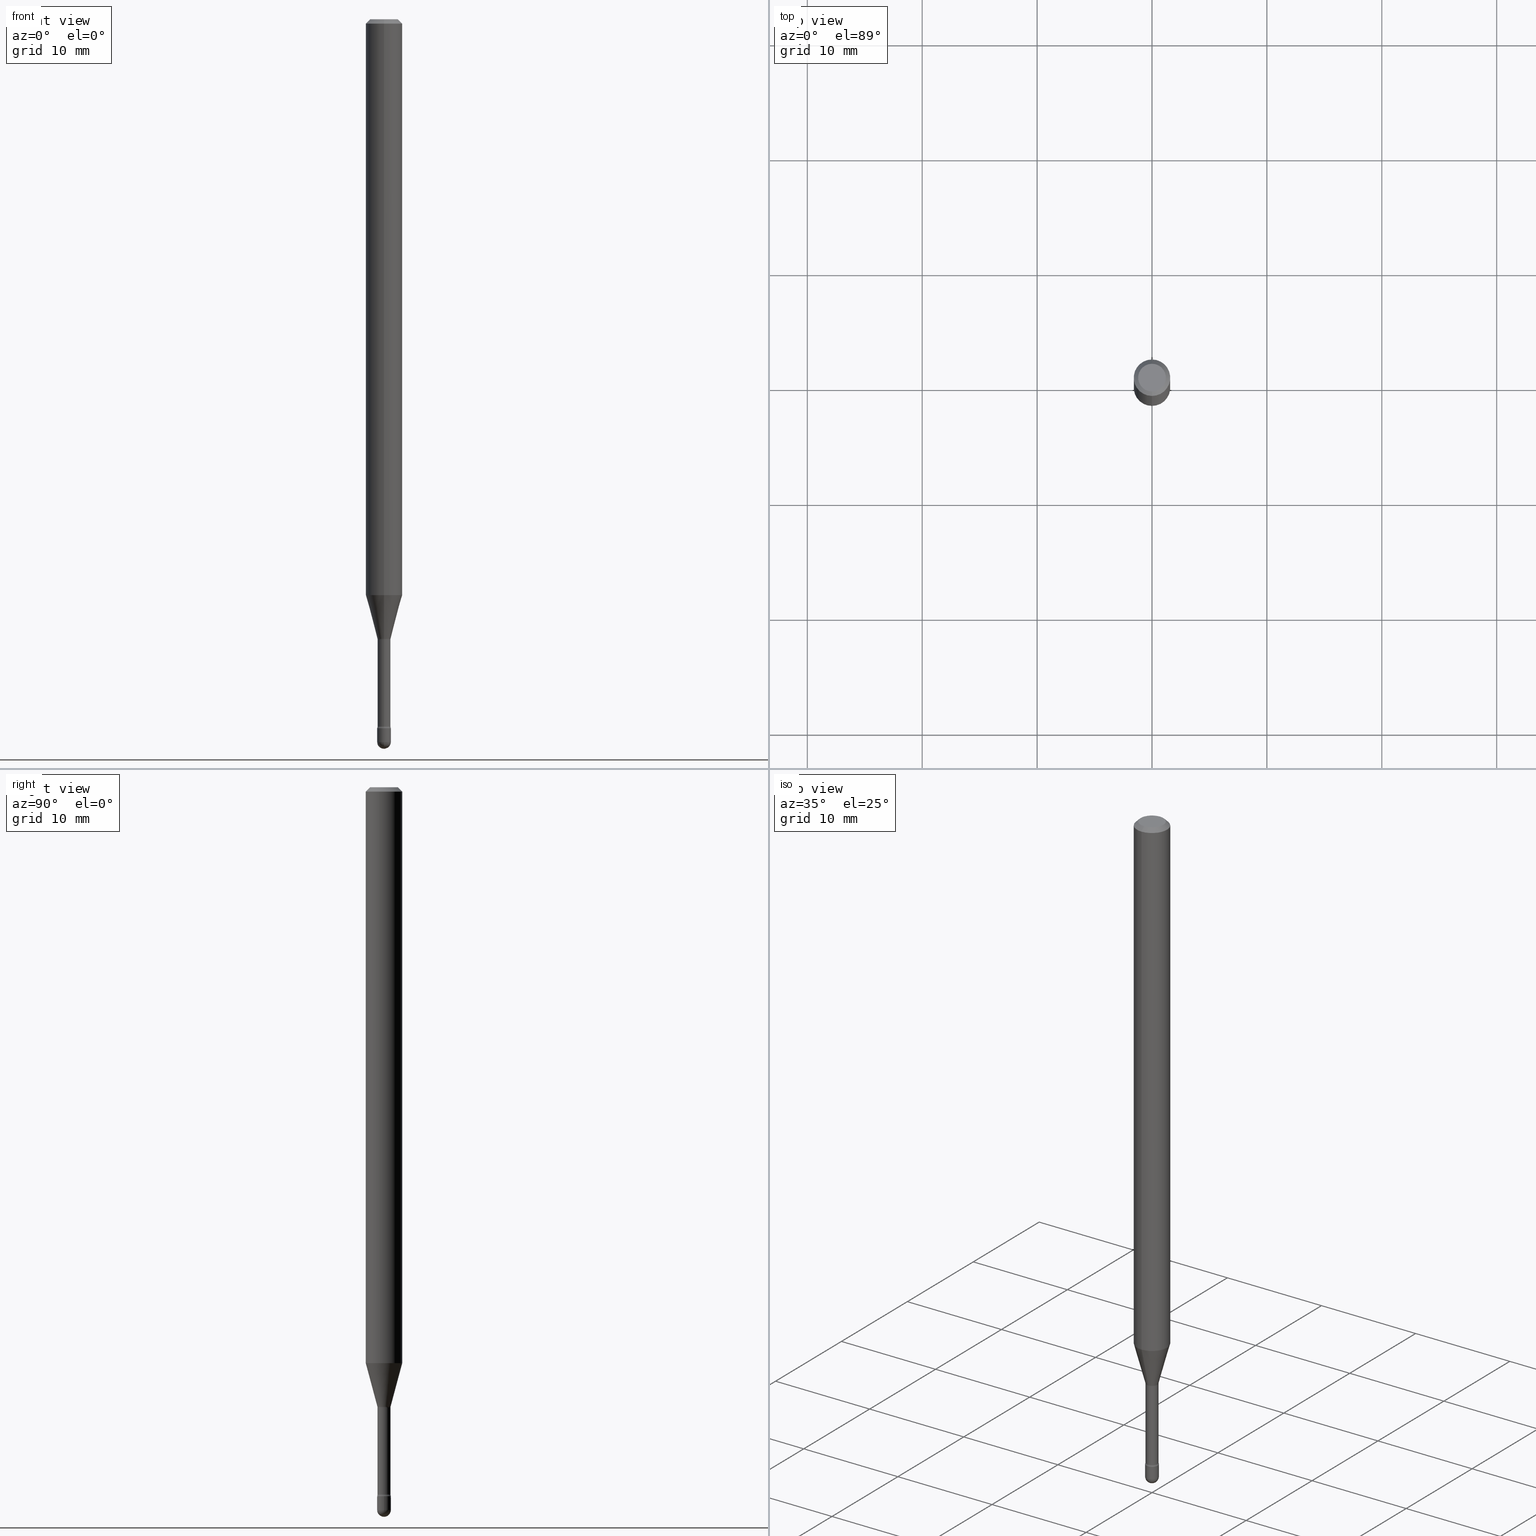
[diagram: canonical four-view strip — front | top / right | iso, engineering-drawing reading convention]
A machine part, canonical four-view strip (front | top / right | iso — engineering-drawing reading convention). The complete STEP part file that produces these views, byte-faithful:
ISO-10303-21;
HEADER;
FILE_DESCRIPTION (( 'STEP AP203' ),
    '1' );
FILE_NAME ('09475.STEP',
    '2024-04-09T23:36:29',
    ( '' ),
    ( '' ),
    'SwSTEP 2.0',
    'SolidWorks 2023',
    '' );
FILE_SCHEMA (( 'CONFIG_CONTROL_DESIGN' ));
ENDSEC;

DATA;
#1 = DIRECTION ( 'NONE',  ( -6.982962677686265922E-15, -1.000000000000000000, 3.483106191921935554E-15 ) ) ;
#2 = EDGE_LOOP ( 'NONE', ( #450, #267, #58, #301 ) ) ;
#3 = CARTESIAN_POINT ( 'NONE',  ( -1.578925554262611837E-16, -0.02261111260567139764, -2.122092501787273378 ) ) ;
#4 = DIRECTION ( 'NONE',  ( -2.445456806742390166E-29, 3.491498522728124281E-15, 1.000000000000000000 ) ) ;
#5 = AXIS2_PLACEMENT_3D ( 'NONE', #203, #117, #121 ) ;
#6 = DIRECTION ( 'NONE',  ( -1.000000000000000000, 7.105427357601001070E-15, -4.926315508542082329E-29 ) ) ;
#7 = AXIS2_PLACEMENT_3D ( 'NONE', #224, #565, #92 ) ;
#8 = ORIENTED_EDGE ( 'NONE', *, *, #559, .T. ) ;
#9 = VECTOR ( 'NONE', #499, 39.37007874015749564 ) ;
#10 = ADVANCED_FACE ( 'NONE', ( #497 ), #491, .F. ) ;
#11 = SECURITY_CLASSIFICATION_LEVEL ( 'unclassified' ) ;
#12 = CARTESIAN_POINT ( 'NONE',  ( -4.287811248607203282E-16, -0.06250000000000005551, -0.01499999999999986587 ) ) ;
#13 = EDGE_CURVE ( 'NONE', #99, #441, #413, .T. ) ;
#14 = ORIENTED_EDGE ( 'NONE', *, *, #428, .F. ) ;
#15 = DIRECTION ( 'NONE',  ( -6.982962677686265922E-15, -1.000000000000000000, 0.000000000000000000 ) ) ;
#16 = VERTEX_POINT ( 'NONE', #52 ) ;
#17 = PERSON_AND_ORGANIZATION_ROLE ( 'design_supplier' ) ;
#18 = EDGE_LOOP ( 'NONE', ( #557, #212, #331, #14 ) ) ;
#19 = AXIS2_PLACEMENT_3D ( 'NONE', #243, #369, #15 ) ;
#20 = AXIS2_PLACEMENT_3D ( 'NONE', #526, #482, #269 ) ;
#21 = COORDINATED_UNIVERSAL_TIME_OFFSET ( 5, 0, .BEHIND. ) ;
#22 = ADVANCED_FACE ( 'NONE', ( #400 ), #97, .T. ) ;
#23 = CARTESIAN_POINT ( 'NONE',  ( 1.620037437533623579E-16, 0.02209999999999160900, -2.422672283192177645 ) ) ;
#24 = EDGE_CURVE ( 'NONE', #234, #398, #438, .T. ) ;
#25 = CARTESIAN_POINT ( 'NONE',  ( -4.364351673553912750E-16, -0.06250000000000005551, -0.01499999999999986587 ) ) ;
#26 = CIRCLE ( 'NONE', #311, 0.04749999999999999362 ) ;
#27 = CC_DESIGN_APPROVAL ( #501, ( #403 ) ) ;
#28 = CARTESIAN_POINT ( 'NONE',  ( 1.606616180941336340E-16, 0.02261111260565657616, -2.122092501787273378 ) ) ;
#29 = EDGE_CURVE ( 'NONE', #441, #398, #375, .T. ) ;
#30 = CC_DESIGN_PERSON_AND_ORGANIZATION_ASSIGNMENT ( #113, #111, ( #216 ) ) ;
#31 = LINE ( 'NONE', #514, #152 ) ;
#32 = APPLICATION_CONTEXT ( 'configuration controlled 3d designs of mechanical parts and assemblies' ) ;
#33 = LINE ( 'NONE', #3, #9 ) ;
#34 = APPLICATION_PROTOCOL_DEFINITION ( 'international standard', 'config_control_design', 1994, #32 ) ;
#35 = CARTESIAN_POINT ( 'NONE',  ( 2.023465601364097511E-45, -2.889165055145571576E-31, -8.274621583700891195E-17 ) ) ;
#36 = CLOSED_SHELL ( 'NONE', ( #478, #356, #300, #477, #535, #313, #555, #101, #416, #367, #10, #238, #543, #67 ) ) ;
#37 = VECTOR ( 'NONE', #305, 39.37007874015748143 ) ;
#38 = DIRECTION ( 'NONE',  ( -2.445468806185136597E-29, 3.491481338843145583E-15, 1.000000000000000000 ) ) ;
#39 = ORIENTED_EDGE ( 'NONE', *, *, #272, .F. ) ;
#40 = EDGE_LOOP ( 'NONE', ( #201, #240 ) ) ;
#41 = DIRECTION ( 'NONE',  ( -1.000000000000000000, 6.982962677686265922E-15, -4.883557194083111780E-29 ) ) ;
#42 = VECTOR ( 'NONE', #488, 39.37007874015748143 ) ;
#43 = CIRCLE ( 'NONE', #424, 0.01499999999999999424 ) ;
#44 = CARTESIAN_POINT ( 'NONE',  ( 5.199005025478825599E-29, -7.422801297280918340E-15, -2.125974787463811300 ) ) ;
#45 = EDGE_CURVE ( 'NONE', #363, #441, #191, .T. ) ;
#46 = FACE_OUTER_BOUND ( 'NONE', #286, .T. ) ;
#47 =( LENGTH_UNIT ( ) NAMED_UNIT ( * ) SI_UNIT ( $, .METRE. ) );
#48 = DATE_AND_TIME ( #550, #347 ) ;
#49 = DIRECTION ( 'NONE',  ( -2.445456806742390166E-29, 3.491498522728124281E-15, 1.000000000000000000 ) ) ;
#50 = ORIENTED_EDGE ( 'NONE', *, *, #382, .F. ) ;
#51 = DIRECTION ( 'NONE',  ( 6.982962677686265922E-15, 1.000000000000000000, -3.491498522728124281E-15 ) ) ;
#52 = CARTESIAN_POINT ( 'NONE',  ( 0.02350000000000000352, -8.644907794975628038E-15, -2.429000000000000270 ) ) ;
#53 = ORIENTED_EDGE ( 'NONE', *, *, #170, .F. ) ;
#54 = CARTESIAN_POINT ( 'NONE',  ( -1.543234751768077413E-16, -0.02210000000000852949, -2.422672283192177645 ) ) ;
#55 = AXIS2_PLACEMENT_3D ( 'NONE', #527, #485, #274 ) ;
#56 = DIRECTION ( 'NONE',  ( -7.105427357601001070E-15, -1.000000000000000000, 0.000000000000000000 ) ) ;
#57 = CIRCLE ( 'NONE', #264, 0.02350000000000000352 ) ;
#58 = ORIENTED_EDGE ( 'NONE', *, *, #45, .T. ) ;
#59 = APPROVAL_PERSON_ORGANIZATION ( #230, #501, #225 ) ;
#60 = DIRECTION ( 'NONE',  ( -2.445456806742390166E-29, 3.491498522728124281E-15, 1.000000000000000000 ) ) ;
#61 = APPROVAL_STATUS ( 'not_yet_approved' ) ;
#62 = ORIENTED_EDGE ( 'NONE', *, *, #227, .T. ) ;
#63 = ORIENTED_EDGE ( 'NONE', *, *, #378, .F. ) ;
#64 = EDGE_CURVE ( 'NONE', #498, #292, #270, .T. ) ;
#65 = DATE_AND_TIME ( #532, #446 ) ;
#66 = ORIENTED_EDGE ( 'NONE', *, *, #235, .F. ) ;
#67 = ADVANCED_FACE ( 'NONE', ( #392 ), #434, .F. ) ;
#68 = AXIS2_PLACEMENT_3D ( 'NONE', #459, #381, #206 ) ;
#69 = EDGE_LOOP ( 'NONE', ( #108, #502, #145, #534, #157 ) ) ;
#70 = DIRECTION ( 'NONE',  ( 1.000000000000000000, -6.982962677686269866E-15, 0.000000000000000000 ) ) ;
#71 = CARTESIAN_POINT ( 'NONE',  ( 6.056203498517492154E-29, -8.646653535645053486E-15, -2.476500000000000590 ) ) ;
#72 = AXIS2_PLACEMENT_3D ( 'NONE', #295, #462, #253 ) ;
#73 = DIRECTION ( 'NONE',  ( 2.445456806742390166E-29, -3.491498522728124281E-15, -1.000000000000000000 ) ) ;
#74 = AXIS2_PLACEMENT_3D ( 'NONE', #317, #41, #183 ) ;
#75 = CARTESIAN_POINT ( 'NONE',  ( 4.825436867881536545E-29, -6.889512687067067726E-15, -1.973225147374217947 ) ) ;
#76 = DIRECTION ( 'NONE',  ( -1.000000000000000000, 6.982962677686265922E-15, -4.883557194083111780E-29 ) ) ;
#77 = ORIENTED_EDGE ( 'NONE', *, *, #294, .F. ) ;
#78 =( CONVERSION_BASED_UNIT ( 'INCH', #547 ) LENGTH_UNIT ( ) NAMED_UNIT ( #316 ) );
#79 = FACE_OUTER_BOUND ( 'NONE', #96, .T. ) ;
#80 = CYLINDRICAL_SURFACE ( 'NONE', #154, 0.02210000000000003975 ) ;
#81 = EDGE_CURVE ( 'NONE', #380, #432, #346, .T. ) ;
#82 = CIRCLE ( 'NONE', #423, 0.02350000000000000699 ) ;
#83 = DIRECTION ( 'NONE',  ( -2.445456806742390166E-29, 3.491498522728124281E-15, 1.000000000000000000 ) ) ;
#84 = CYLINDRICAL_SURFACE ( 'NONE', #188, 0.02350000000000000352 ) ;
#85 = AXIS2_PLACEMENT_3D ( 'NONE', #561, #220, #315 ) ;
#86 = ORGANIZATION ( 'UNSPECIFIED', 'UNSPECIFIED', '' ) ;
#87 = ORIENTED_EDGE ( 'NONE', *, *, #156, .T. ) ;
#88 = FACE_OUTER_BOUND ( 'NONE', #544, .T. ) ;
#89 = CYLINDRICAL_SURFACE ( 'NONE', #85, 0.02350000000000000352 ) ;
#90 = CARTESIAN_POINT ( 'NONE',  ( 0.02350000000000000352, -1.640996229256272766E-16, 1.145901542312045115E-30 ) ) ;
#91 = ORIENTED_EDGE ( 'NONE', *, *, #528, .T. ) ;
#92 = DIRECTION ( 'NONE',  ( -6.982962677686265922E-15, -1.000000000000000000, 3.491498522728124281E-15 ) ) ;
#93 = AXIS2_PLACEMENT_3D ( 'NONE', #241, #494, #104 ) ;
#94 = ORIENTED_EDGE ( 'NONE', *, *, #281, .T. ) ;
#95 = CARTESIAN_POINT ( 'NONE',  ( 5.924569496155794395E-29, -8.458715066898005273E-15, -2.422672283192177645 ) ) ;
#96 = EDGE_LOOP ( 'NONE', ( #324, #8, #123, #147 ) ) ;
#97 = PLANE ( 'NONE',  #55 ) ;
#98 = LINE ( 'NONE', #277, #546 ) ;
#99 = VERTEX_POINT ( 'NONE', #211 ) ;
#100 = FACE_OUTER_BOUND ( 'NONE', #242, .T. ) ;
#101 = ADVANCED_FACE ( 'NONE', ( #474 ), #394, .T. ) ;
#102 = VECTOR ( 'NONE', #208, 39.37007874015747433 ) ;
#103 = ORIENTED_EDGE ( 'NONE', *, *, #105, .T. ) ;
#104 = DIRECTION ( 'NONE',  ( 6.982962677686265922E-15, 1.000000000000000000, -3.483106191921935554E-15 ) ) ;
#105 = EDGE_CURVE ( 'NONE', #372, #506, #134, .T. ) ;
#106 = DATE_AND_TIME ( #408, #172 ) ;
#107 = DIRECTION ( 'NONE',  ( -6.982962677686265922E-15, -1.000000000000000000, 3.491498522728124281E-15 ) ) ;
#108 = ORIENTED_EDGE ( 'NONE', *, *, #512, .F. ) ;
#109 = DIRECTION ( 'NONE',  ( -2.445456806742390166E-29, 3.491498522728124281E-15, 1.000000000000000000 ) ) ;
#110 = CARTESIAN_POINT ( 'NONE',  ( 5.189485553032674441E-29, -7.409282835082695352E-15, -2.122092501787273378 ) ) ;
#111 = PERSON_AND_ORGANIZATION_ROLE ( 'creator' ) ;
#112 = CARTESIAN_POINT ( 'NONE',  ( 6.056203498517491033E-29, -8.646653535645050331E-15, -2.476500000000000146 ) ) ;
#113 = PERSON_AND_ORGANIZATION ( #361, #86 ) ;
#114 = ORIENTED_EDGE ( 'NONE', *, *, #391, .T. ) ;
#115 = CIRCLE ( 'NONE', #430, 0.06250000000000000000 ) ;
#116 = CIRCLE ( 'NONE', #376, 0.02261111260566398690 ) ;
#117 = DIRECTION ( 'NONE',  ( 1.000000000000000000, -7.105427357601001070E-15, 4.926315718983979931E-29 ) ) ;
#118 = ORIENTED_EDGE ( 'NONE', *, *, #411, .F. ) ;
#119 = EDGE_CURVE ( 'NONE', #99, #492, #115, .T. ) ;
#120 =( NAMED_UNIT ( * ) SI_UNIT ( $, .STERADIAN. ) SOLID_ANGLE_UNIT ( ) );
#121 = DIRECTION ( 'NONE',  ( 7.105427357601001859E-15, 1.000000000000000000, 0.000000000000000000 ) ) ;
#122 = DIRECTION ( 'NONE',  ( 6.982962677686265922E-15, 1.000000000000000000, 0.000000000000000000 ) ) ;
#123 = ORIENTED_EDGE ( 'NONE', *, *, #176, .T. ) ;
#124 = AXIS2_PLACEMENT_3D ( 'NONE', #518, #507, #70 ) ;
#125 = DIRECTION ( 'NONE',  ( -6.982962677686265922E-15, -1.000000000000000000, 0.000000000000000000 ) ) ;
#126 = FACE_OUTER_BOUND ( 'NONE', #2, .T. ) ;
#127 = DIRECTION ( 'NONE',  ( -2.445456806742389886E-29, 3.491498522728124281E-15, 1.000000000000000000 ) ) ;
#128 = EDGE_CURVE ( 'NONE', #151, #393, #352, .T. ) ;
#129 = CYLINDRICAL_SURFACE ( 'NONE', #523, 0.06250000000000000000 ) ;
#130 = DIRECTION ( 'NONE',  ( 1.000000000000000000, -6.982962677686269866E-15, 0.000000000000000000 ) ) ;
#131 = CARTESIAN_POINT ( 'NONE',  ( 5.189485553032674441E-29, -7.409282835082695352E-15, -2.122092501787273378 ) ) ;
#132 = FACE_OUTER_BOUND ( 'NONE', #69, .T. ) ;
#133 = EDGE_LOOP ( 'NONE', ( #261, #298, #489, #219 ) ) ;
#134 = CIRCLE ( 'NONE', #364, 0.02350000000000000352 ) ;
#135 = AXIS2_PLACEMENT_3D ( 'NONE', #454, #397, #192 ) ;
#136 =( GEOMETRIC_REPRESENTATION_CONTEXT ( 3 ) GLOBAL_UNCERTAINTY_ASSIGNED_CONTEXT ( ( #435 ) ) GLOBAL_UNIT_ASSIGNED_CONTEXT ( ( #78, #165, #120 ) ) REPRESENTATION_CONTEXT ( 'NONE', 'WORKASPACE' ) );
#137 = EDGE_CURVE ( 'NONE', #185, #493, #82, .T. ) ;
#138 = DIRECTION ( 'NONE',  ( 1.000000000000000000, 0.000000000000000000, 0.000000000000000000 ) ) ;
#139 = PLANE ( 'NONE',  #417 ) ;
#140 = DATE_TIME_ROLE ( 'classification_date' ) ;
#141 = CIRCLE ( 'NONE', #455, 0.02350000000000000352 ) ;
#142 = CONICAL_SURFACE ( 'NONE', #505, 0.02261111260566398690, 0.2617993877991501295 ) ;
#143 = CARTESIAN_POINT ( 'NONE',  ( 6.114676835852627231E-29, -8.727264387118866723E-15, -2.500000000000000000 ) ) ;
#144 = ORIENTED_EDGE ( 'NONE', *, *, #64, .F. ) ;
#145 = ORIENTED_EDGE ( 'NONE', *, *, #207, .T. ) ;
#146 = CARTESIAN_POINT ( 'NONE',  ( -1.640996229255678655E-16, -0.02350000000000847938, -2.429000000000000270 ) ) ;
#147 = ORIENTED_EDGE ( 'NONE', *, *, #348, .F. ) ;
#148 = APPROVAL ( #61, 'UNSPECIFIED' ) ;
#149 = ORIENTED_EDGE ( 'NONE', *, *, #490, .T. ) ;
#150 = CALENDAR_DATE ( 2024, 9, 4 ) ;
#151 = VERTEX_POINT ( 'NONE', #341 ) ;
#152 = VECTOR ( 'NONE', #127, 39.37007874015748143 ) ;
#153 = VERTEX_POINT ( 'NONE', #549 ) ;
#154 = AXIS2_PLACEMENT_3D ( 'NONE', #257, #218, #168 ) ;
#155 = EDGE_CURVE ( 'NONE', #289, #393, #327, .T. ) ;
#156 = EDGE_CURVE ( 'NONE', #432, #393, #167, .T. ) ;
#157 = ORIENTED_EDGE ( 'NONE', *, *, #490, .F. ) ;
#158 = APPLICATION_PROTOCOL_DEFINITION ( 'international standard', 'config_control_design', 1994, #309 ) ;
#159 = ORIENTED_EDGE ( 'NONE', *, *, #182, .T. ) ;
#160 = EDGE_CURVE ( 'NONE', #363, #234, #26, .T. ) ;
#161 = MECHANICAL_CONTEXT ( 'NONE', #32, 'mechanical' ) ;
#162 = EDGE_LOOP ( 'NONE', ( #355, #401, #275, #469 ) ) ;
#163 = CIRCLE ( 'NONE', #19, 0.02261111260566398690 ) ;
#164 = CARTESIAN_POINT ( 'NONE',  ( 4.825436867881536545E-29, -6.889512687067067726E-15, -1.973225147374217947 ) ) ;
#165 =( NAMED_UNIT ( * ) PLANE_ANGLE_UNIT ( ) SI_UNIT ( $, .RADIAN. ) );
#166 = DIRECTION ( 'NONE',  ( -6.982962677686265922E-15, -1.000000000000000000, 4.370956789862821150E-15 ) ) ;
#167 = LINE ( 'NONE', #510, #37 ) ;
#168 = DIRECTION ( 'NONE',  ( -6.982962677686265922E-15, -1.000000000000000000, 3.491498522728123098E-15 ) ) ;
#169 = DIRECTION ( 'NONE',  ( -6.982962677686262766E-15, -1.000000000000000000, 0.000000000000000000 ) ) ;
#170 = EDGE_CURVE ( 'NONE', #398, #441, #339, .T. ) ;
#171 = CIRCLE ( 'NONE', #205, 0.02350000000000000699 ) ;
#172 = LOCAL_TIME ( 19, 36, 29.00000000000000000, #21 ) ;
#173 = DIRECTION ( 'NONE',  ( -6.982962677686266711E-15, -1.000000000000000000, 3.491498522728124676E-15 ) ) ;
#174 = DIRECTION ( 'NONE',  ( -2.445456806742390166E-29, 3.491498522728124281E-15, 1.000000000000000000 ) ) ;
#175 = ORIENTED_EDGE ( 'NONE', *, *, #182, .F. ) ;
#176 = EDGE_CURVE ( 'NONE', #380, #289, #31, .T. ) ;
#177 = CLOSED_SHELL ( 'NONE', ( #350, #249, #22, #529, #323 ) ) ;
#178 = CARTESIAN_POINT ( 'NONE',  ( 5.940014583577266287E-29, -8.480849911706614347E-15, -2.429000000000000270 ) ) ;
#179 = VECTOR ( 'NONE', #247, 39.37007874015748143 ) ;
#180 = APPROVAL_STATUS ( 'not_yet_approved' ) ;
#181 = CYLINDRICAL_SURFACE ( 'NONE', #302, 0.02210000000000003975 ) ;
#182 = EDGE_CURVE ( 'NONE', #464, #185, #251, .T. ) ;
#183 = DIRECTION ( 'NONE',  ( 6.982962677686265922E-15, 1.000000000000000000, 0.000000000000000000 ) ) ;
#184 = DIRECTION ( 'NONE',  ( -2.445456806742390166E-29, 3.491498522728124281E-15, 1.000000000000000000 ) ) ;
#185 = VERTEX_POINT ( 'NONE', #556 ) ;
#186 = CARTESIAN_POINT ( 'NONE',  ( -1.543234751768145452E-16, -0.02210000000000743314, -2.125974787463811300 ) ) ;
#187 = LINE ( 'NONE', #452, #179 ) ;
#188 = AXIS2_PLACEMENT_3D ( 'NONE', #306, #388, #466 ) ;
#189 = ORIENTED_EDGE ( 'NONE', *, *, #385, .T. ) ;
#190 = CARTESIAN_POINT ( 'NONE',  ( 4.440892098501111311E-16, 0.06249999999999995143, -0.01500000000000030129 ) ) ;
#191 = LINE ( 'NONE', #285, #545 ) ;
#192 = DIRECTION ( 'NONE',  ( 6.982962677686265922E-15, 1.000000000000000000, 0.000000000000000000 ) ) ;
#193 = EDGE_LOOP ( 'NONE', ( #377, #255, #103, #278 ) ) ;
#194 = CARTESIAN_POINT ( 'NONE',  ( 0.02350000000000000699, -8.727830476773153796E-15, -2.476500000000000590 ) ) ;
#195 = DATE_TIME_ROLE ( 'creation_date' ) ;
#196 = ORIENTED_EDGE ( 'NONE', *, *, #207, .F. ) ;
#197 = FACE_OUTER_BOUND ( 'NONE', #229, .T. ) ;
#198 = ORIENTED_EDGE ( 'NONE', *, *, #294, .T. ) ;
#199 = DIRECTION ( 'NONE',  ( -2.445468806185136877E-29, 3.491481338843145188E-15, 1.000000000000000000 ) ) ;
#200 = AXIS2_PLACEMENT_3D ( 'NONE', #35, #217, #390 ) ;
#201 = ORIENTED_EDGE ( 'NONE', *, *, #281, .F. ) ;
#202 = PRODUCT_RELATED_PRODUCT_CATEGORY ( 'detail', '', ( #297 ) ) ;
#203 = CARTESIAN_POINT ( 'NONE',  ( 2.636113549670491425E-16, 0.03709999999999258335, -2.125974787463811300 ) ) ;
#204 = CC_DESIGN_DATE_AND_TIME_ASSIGNMENT ( #106, #195, ( #444 ) ) ;
#205 = AXIS2_PLACEMENT_3D ( 'NONE', #421, #551, #426 ) ;
#206 = DIRECTION ( 'NONE',  ( -6.982962677686265922E-15, -1.000000000000000000, 3.483106191921935554E-15 ) ) ;
#207 = EDGE_CURVE ( 'NONE', #292, #464, #562, .T. ) ;
#208 = DIRECTION ( 'NONE',  ( 1.839019923739599526E-15, 0.2588190451025248473, 0.9659258262890673130 ) ) ;
#209 = CARTESIAN_POINT ( 'NONE',  ( 5.199005025478825599E-29, -7.422801297280918340E-15, -2.125974787463811300 ) ) ;
#210 = DIRECTION ( 'NONE',  ( -2.445456806742390166E-29, 3.491498522728124281E-15, 1.000000000000000000 ) ) ;
#211 = CARTESIAN_POINT ( 'NONE',  ( 4.440892098501106381E-16, 0.06249999999999308192, -1.973225147374218169 ) ) ;
#212 = ORIENTED_EDGE ( 'NONE', *, *, #235, .T. ) ;
#213 = FACE_OUTER_BOUND ( 'NONE', #246, .T. ) ;
#214 = AXIS2_PLACEMENT_3D ( 'NONE', #336, #109, #329 ) ;
#215 = CIRCLE ( 'NONE', #522, 0.06250000000000000000 ) ;
#216 = PRODUCT_DEFINITION_FORMATION_WITH_SPECIFIED_SOURCE ( 'ANY', '', #297, .NOT_KNOWN. ) ;
#217 = DIRECTION ( 'NONE',  ( -2.445456806742390166E-29, 3.491498522728124281E-15, 1.000000000000000000 ) ) ;
#218 = DIRECTION ( 'NONE',  ( -2.445456806742390166E-29, 3.491498522728124281E-15, 1.000000000000000000 ) ) ;
#219 = ORIENTED_EDGE ( 'NONE', *, *, #29, .F. ) ;
#220 = DIRECTION ( 'NONE',  ( -2.445468806185136597E-29, 3.491481338843145583E-15, 1.000000000000000000 ) ) ;
#221 = EDGE_LOOP ( 'NONE', ( #114, #149 ) ) ;
#222 = SPHERICAL_SURFACE ( 'NONE', #74, 0.02349999999999995148 ) ;
#223 = AXIS2_PLACEMENT_3D ( 'NONE', #349, #481, #365 ) ;
#224 = CARTESIAN_POINT ( 'NONE',  ( 5.924569496155794395E-29, -8.458715066898005273E-15, -2.422672283192177645 ) ) ;
#225 = APPROVAL_ROLE ( '' ) ;
#226 = ORIENTED_EDGE ( 'NONE', *, *, #176, .F. ) ;
#227 = EDGE_CURVE ( 'NONE', #234, #363, #495, .T. ) ;
#228 = ORIENTED_EDGE ( 'NONE', *, *, #386, .F. ) ;
#229 = EDGE_LOOP ( 'NONE', ( #144, #91, #175, #196 ) ) ;
#230 = PERSON_AND_ORGANIZATION ( #361, #86 ) ;
#231 = AXIS2_PLACEMENT_3D ( 'NONE', #44, #174, #262 ) ;
#232 = DIRECTION ( 'NONE',  ( -2.445456806742390166E-29, 3.491498522728124281E-15, 1.000000000000000000 ) ) ;
#233 = CC_DESIGN_APPROVAL ( #148, ( #444 ) ) ;
#234 = VERTEX_POINT ( 'NONE', #422 ) ;
#235 = EDGE_CURVE ( 'NONE', #151, #99, #509, .T. ) ;
#236 = PERSON_AND_ORGANIZATION_ROLE ( 'creator' ) ;
#237 = DIRECTION ( 'NONE',  ( -4.851104656540964275E-15, -0.7071067811865500152, -0.7071067811865450192 ) ) ;
#238 = ADVANCED_FACE ( 'NONE', ( #88 ), #282, .F. ) ;
#239 = APPROVAL ( #457, 'UNSPECIFIED' ) ;
#240 = ORIENTED_EDGE ( 'NONE', *, *, #105, .F. ) ;
#241 = CARTESIAN_POINT ( 'NONE',  ( 3.668185210113605428E-31, -5.237247784092215166E-17, -0.01500000000000008271 ) ) ;
#242 = EDGE_LOOP ( 'NONE', ( #310, #368, #326, #410 ) ) ;
#243 = CARTESIAN_POINT ( 'NONE',  ( 5.189485553032674441E-29, -7.409282835082695352E-15, -2.122092501787273378 ) ) ;
#244 = CARTESIAN_POINT ( 'NONE',  ( 5.940014583577266287E-29, -8.480849911706614347E-15, -2.429000000000000270 ) ) ;
#245 = CIRCLE ( 'NONE', #223, 0.02210000000000000853 ) ;
#246 = EDGE_LOOP ( 'NONE', ( #66, #198, #519, #414 ) ) ;
#247 = DIRECTION ( 'NONE',  ( -2.445456806742389886E-29, 3.491498522728124281E-15, 1.000000000000000000 ) ) ;
#248 = PERSON_AND_ORGANIZATION_ROLE ( 'classification_officer' ) ;
#249 = ADVANCED_FACE ( 'NONE', ( #487 ), #222, .T. ) ;
#250 = CARTESIAN_POINT ( 'NONE',  ( 6.056203498517492154E-29, -8.646653535645053486E-15, -2.476500000000000590 ) ) ;
#251 = CIRCLE ( 'NONE', #366, 0.02350000000000000699 ) ;
#252 = AXIS2_PLACEMENT_3D ( 'NONE', #564, #525, #138 ) ;
#253 = DIRECTION ( 'NONE',  ( -6.982962677686265922E-15, -1.000000000000000000, 0.000000000000000000 ) ) ;
#254 = CARTESIAN_POINT ( 'NONE',  ( -1.169113584055446105E-44, 1.669184350826100908E-30, 4.780733988912460139E-16 ) ) ;
#255 = ORIENTED_EDGE ( 'NONE', *, *, #386, .T. ) ;
#256 = DIRECTION ( 'NONE',  ( -6.982962677686265133E-15, -1.000000000000000000, 0.000000000000000000 ) ) ;
#257 = CARTESIAN_POINT ( 'NONE',  ( -1.169113584055446105E-44, 1.669184350826100908E-30, 4.780733988912460139E-16 ) ) ;
#258 = ORIENTED_EDGE ( 'NONE', *, *, #128, .T. ) ;
#259 = CARTESIAN_POINT ( 'NONE',  ( 1.570299446030415881E-16, 0.02209999999999258738, -2.125974787463811300 ) ) ;
#260 = DIRECTION ( 'NONE',  ( 1.000000000000000000, -6.982962677686227268E-15, 0.000000000000000000 ) ) ;
#261 = ORIENTED_EDGE ( 'NONE', *, *, #13, .F. ) ;
#262 = DIRECTION ( 'NONE',  ( -6.982962677686265922E-15, -1.000000000000000000, 3.491498522728124281E-15 ) ) ;
#263 = AXIS2_PLACEMENT_3D ( 'NONE', #371, #49, #1 ) ;
#264 = AXIS2_PLACEMENT_3D ( 'NONE', #178, #4, #433 ) ;
#265 = DIRECTION ( 'NONE',  ( -1.000000000000000000, 6.982962677686265922E-15, -4.883557194083112340E-29 ) ) ;
#266 = DIRECTION ( 'NONE',  ( -6.982962677686265922E-15, -1.000000000000000000, 0.000000000000000000 ) ) ;
#267 = ORIENTED_EDGE ( 'NONE', *, *, #160, .F. ) ;
#268 = PRODUCT_DEFINITION_SHAPE ( 'NONE', 'NONE',  #444 ) ;
#269 = DIRECTION ( 'NONE',  ( -6.982962677686265133E-15, -1.000000000000000000, 0.000000000000000000 ) ) ;
#270 = CIRCLE ( 'NONE', #383, 0.02349999999999995148 ) ;
#271 = CIRCLE ( 'NONE', #463, 0.01499999999999999424 ) ;
#272 = EDGE_CURVE ( 'NONE', #464, #16, #483, .T. ) ;
#273 = SHAPE_DEFINITION_REPRESENTATION ( #268, #418 ) ;
#274 = DIRECTION ( 'NONE',  ( 1.000000000000000000, -6.982962677686265922E-15, 4.876176775795935793E-29 ) ) ;
#275 = ORIENTED_EDGE ( 'NONE', *, *, #411, .T. ) ;
#276 = DESIGN_CONTEXT ( 'detailed design', #309, 'design' ) ;
#277 = CARTESIAN_POINT ( 'NONE',  ( -0.02350000000000000352, 1.669775429036235687E-16, -1.155949746209903035E-30 ) ) ;
#278 = ORIENTED_EDGE ( 'NONE', *, *, #335, .F. ) ;
#279 = DIRECTION ( 'NONE',  ( -6.982962677686265133E-15, -1.000000000000000000, 0.000000000000000000 ) ) ;
#280 = ORIENTED_EDGE ( 'NONE', *, *, #137, .T. ) ;
#281 = EDGE_CURVE ( 'NONE', #506, #372, #57, .T. ) ;
#282 = TOROIDAL_SURFACE ( 'NONE', #7, 0.03710000000000006348, 0.01499999999999999424 ) ;
#283 = CC_DESIGN_PERSON_AND_ORGANIZATION_ASSIGNMENT ( #379, #338, ( #297 ) ) ;
#284 = LOCAL_TIME ( 19, 36, 29.00000000000000000, #320 ) ;
#285 = CARTESIAN_POINT ( 'NONE',  ( 4.364351673553919652E-16, 0.06249999999999995143, -0.01500000000000030129 ) ) ;
#286 = EDGE_LOOP ( 'NONE', ( #321, #62 ) ) ;
#287 = CC_DESIGN_PERSON_AND_ORGANIZATION_ASSIGNMENT ( #291, #248, ( #403 ) ) ;
#288 = CARTESIAN_POINT ( 'NONE',  ( 4.440892098500625669E-16, 0.06250000000000000000, 2.598547412207382957E-16 ) ) ;
#289 = VERTEX_POINT ( 'NONE', #186 ) ;
#290 = DIRECTION ( 'NONE',  ( -2.445456806742390166E-29, 3.491498522728124281E-15, 1.000000000000000000 ) ) ;
#291 = PERSON_AND_ORGANIZATION ( #361, #86 ) ;
#292 = VERTEX_POINT ( 'NONE', #358 ) ;
#293 = AXIS2_PLACEMENT_3D ( 'NONE', #250, #343, #260 ) ;
#294 = EDGE_CURVE ( 'NONE', #151, #153, #116, .T. ) ;
#295 = CARTESIAN_POINT ( 'NONE',  ( 5.198979514966082173E-29, -7.422837829787135481E-15, -2.125974787463811300 ) ) ;
#296 = APPROVAL_DATE_TIME ( #65, #148 ) ;
#297 = PRODUCT ( '09475', '09475', '', ( #161 ) ) ;
#298 = ORIENTED_EDGE ( 'NONE', *, *, #119, .T. ) ;
#299 = DIRECTION ( 'NONE',  ( 1.000000000000000000, -6.982962677686227268E-15, 0.000000000000000000 ) ) ;
#300 = ADVANCED_FACE ( 'NONE', ( #470 ), #328, .F. ) ;
#301 = ORIENTED_EDGE ( 'NONE', *, *, #29, .T. ) ;
#302 = AXIS2_PLACEMENT_3D ( 'NONE', #484, #184, #437 ) ;
#303 = AXIS2_PLACEMENT_3D ( 'NONE', #112, #76, #122 ) ;
#304 = DIRECTION ( 'NONE',  ( 1.000000000000000000, -7.105427357601001070E-15, 4.926315718983979931E-29 ) ) ;
#305 = DIRECTION ( 'NONE',  ( -2.445456806742389886E-29, 3.491498522728124281E-15, 1.000000000000000000 ) ) ;
#306 = CARTESIAN_POINT ( 'NONE',  ( 0.000000000000000000, 0.000000000000000000, 0.000000000000000000 ) ) ;
#307 = CARTESIAN_POINT ( 'NONE',  ( 5.940043730223697314E-29, -8.480808172050001970E-15, -2.429000000000000270 ) ) ;
#308 = DIRECTION ( 'NONE',  ( -2.445456806742390166E-29, 3.491498522728124281E-15, 1.000000000000000000 ) ) ;
#309 = APPLICATION_CONTEXT ( 'configuration controlled 3d designs of mechanical parts and assemblies' ) ;
#310 = ORIENTED_EDGE ( 'NONE', *, *, #227, .F. ) ;
#311 = AXIS2_PLACEMENT_3D ( 'NONE', #419, #472, #173 ) ;
#312 = CC_DESIGN_APPROVAL ( #239, ( #216 ) ) ;
#313 = ADVANCED_FACE ( 'NONE', ( #357 ), #402, .T. ) ;
#314 = DIRECTION ( 'NONE',  ( -2.445456806742390166E-29, 3.491498522728124281E-15, 1.000000000000000000 ) ) ;
#315 = DIRECTION ( 'NONE',  ( 1.000000000000000000, -6.982962677686265922E-15, 4.876176775795935793E-29 ) ) ;
#316 = DIMENSIONAL_EXPONENTS ( 1.000000000000000000, 0.000000000000000000, 0.000000000000000000, 0.000000000000000000, 0.000000000000000000, 0.000000000000000000, 0.000000000000000000 ) ;
#317 = CARTESIAN_POINT ( 'NONE',  ( 6.056203498517491033E-29, -8.646653535645050331E-15, -2.476500000000000146 ) ) ;
#318 = CARTESIAN_POINT ( 'NONE',  ( 3.316907271900976096E-16, 0.04749999999999999362, 3.181741169753270705E-17 ) ) ;
#319 = AXIS2_PLACEMENT_3D ( 'NONE', #344, #73, #471 ) ;
#320 = COORDINATED_UNIVERSAL_TIME_OFFSET ( 5, 0, .BEHIND. ) ;
#321 = ORIENTED_EDGE ( 'NONE', *, *, #160, .T. ) ;
#322 = EDGE_LOOP ( 'NONE', ( #439, #407, #50, #513 ) ) ;
#323 = ADVANCED_FACE ( 'NONE', ( #132 ), #84, .T. ) ;
#324 = ORIENTED_EDGE ( 'NONE', *, *, #156, .F. ) ;
#325 = PERSON_AND_ORGANIZATION ( #361, #86 ) ;
#326 = ORIENTED_EDGE ( 'NONE', *, *, #170, .T. ) ;
#327 = CIRCLE ( 'NONE', #72, 0.02210000000000000853 ) ;
#328 = TOROIDAL_SURFACE ( 'NONE', #431, 0.03710000000000006348, 0.01499999999999999424 ) ;
#329 = DIRECTION ( 'NONE',  ( -6.982962677686265922E-15, -1.000000000000000000, 3.491498522728124676E-15 ) ) ;
#330 = ORIENTED_EDGE ( 'NONE', *, *, #81, .T. ) ;
#331 = ORIENTED_EDGE ( 'NONE', *, *, #385, .F. ) ;
#332 = DATE_AND_TIME ( #150, #563 ) ;
#333 = SPHERICAL_SURFACE ( 'NONE', #303, 0.02349999999999995148 ) ;
#334 = ORIENTED_EDGE ( 'NONE', *, *, #13, .T. ) ;
#335 = EDGE_CURVE ( 'NONE', #380, #506, #271, .T. ) ;
#336 = CARTESIAN_POINT ( 'NONE',  ( -1.169113584055446105E-44, 1.669184350826100908E-30, 4.780733988912460139E-16 ) ) ;
#337 = VECTOR ( 'NONE', #237, 39.37007874015748143 ) ;
#338 = PERSON_AND_ORGANIZATION_ROLE ( 'design_owner' ) ;
#339 = CIRCLE ( 'NONE', #68, 0.06250000000000000000 ) ;
#340 = ORIENTED_EDGE ( 'NONE', *, *, #81, .F. ) ;
#341 = CARTESIAN_POINT ( 'NONE',  ( 3.023754139721223086E-16, 0.02261111260565657616, -2.122092501787273378 ) ) ;
#342 = CARTESIAN_POINT ( 'NONE',  ( -2.590679153421085311E-16, -0.03710000000000742565, -2.125974787463811300 ) ) ;
#343 = DIRECTION ( 'NONE',  ( -2.445468806185136597E-29, 3.491481338843145583E-15, 1.000000000000000000 ) ) ;
#344 = CARTESIAN_POINT ( 'NONE',  ( 3.668185210113605428E-31, -5.237247784092215166E-17, -0.01500000000000008271 ) ) ;
#345 = CARTESIAN_POINT ( 'NONE',  ( 6.056203498517492154E-29, -8.646653535645053486E-15, -2.476500000000000590 ) ) ;
#346 = CIRCLE ( 'NONE', #511, 0.02210000000000007098 ) ;
#347 = LOCAL_TIME ( 19, 36, 29.00000000000000000, #451 ) ;
#348 = EDGE_CURVE ( 'NONE', #393, #289, #245, .T. ) ;
#349 = CARTESIAN_POINT ( 'NONE',  ( 5.198979514966082173E-29, -7.422837829787135481E-15, -2.125974787463811300 ) ) ;
#350 = ADVANCED_FACE ( 'NONE', ( #443 ), #89, .T. ) ;
#351 = CARTESIAN_POINT ( 'NONE',  ( -4.364351673553435489E-16, -0.06250000000000691114, -1.973225147374217503 ) ) ;
#352 = CIRCLE ( 'NONE', #5, 0.01500000000000001506 ) ;
#353 = AXIS2_PLACEMENT_3D ( 'NONE', #110, #290, #425 ) ;
#354 = MANIFOLD_SOLID_BREP ( 'Body-Move/Copy2[1]', #177 ) ;
#355 = ORIENTED_EDGE ( 'NONE', *, *, #128, .F. ) ;
#356 = ADVANCED_FACE ( 'NONE', ( #396 ), #181, .T. ) ;
#357 = FACE_OUTER_BOUND ( 'NONE', #18, .T. ) ;
#358 = CARTESIAN_POINT ( 'NONE',  ( -1.669775429035627771E-16, -0.02350000000000862510, -2.476500000000000590 ) ) ;
#359 = CARTESIAN_POINT ( 'NONE',  ( 3.840629472727447874E-16, 0.04749999999999999362, -2.485923956665947867E-16 ) ) ;
#360 = CC_DESIGN_DATE_AND_TIME_ASSIGNMENT ( #48, #140, ( #403 ) ) ;
#361 = PERSON ( 'UNSPECIFIED', 'UNSPECIFIED', 'UNSPECIFIED', ('UNSPECIFIED'), ('UNSPECIFIED'), ('UNSPECIFIED') ) ;
#362 = CARTESIAN_POINT ( 'NONE',  ( 6.056203498517491033E-29, -8.646653535645050331E-15, -2.476500000000000146 ) ) ;
#363 = VERTEX_POINT ( 'NONE', #359 ) ;
#364 = AXIS2_PLACEMENT_3D ( 'NONE', #244, #232, #370 ) ;
#365 = DIRECTION ( 'NONE',  ( -6.982962677686265922E-15, -1.000000000000000000, 0.000000000000000000 ) ) ;
#366 = AXIS2_PLACEMENT_3D ( 'NONE', #71, #508, #299 ) ;
#367 = ADVANCED_FACE ( 'NONE', ( #46 ), #139, .F. ) ;
#368 = ORIENTED_EDGE ( 'NONE', *, *, #24, .T. ) ;
#369 = DIRECTION ( 'NONE',  ( -2.445456806742390166E-29, 3.491498522728124281E-15, 1.000000000000000000 ) ) ;
#370 = DIRECTION ( 'NONE',  ( -6.982962677686265922E-15, -1.000000000000000000, 0.000000000000000000 ) ) ;
#371 = CARTESIAN_POINT ( 'NONE',  ( 3.668185210113605428E-31, -5.237247784092215166E-17, -0.01500000000000008271 ) ) ;
#372 = VERTEX_POINT ( 'NONE', #399 ) ;
#373 = COORDINATED_UNIVERSAL_TIME_OFFSET ( 5, 0, .BEHIND. ) ;
#374 = EDGE_LOOP ( 'NONE', ( #330, #87, #558, #226 ) ) ;
#375 = CIRCLE ( 'NONE', #263, 0.06250000000000000000 ) ;
#376 = AXIS2_PLACEMENT_3D ( 'NONE', #131, #83, #125 ) ;
#377 = ORIENTED_EDGE ( 'NONE', *, *, #559, .F. ) ;
#378 = EDGE_CURVE ( 'NONE', #492, #398, #187, .T. ) ;
#379 = PERSON_AND_ORGANIZATION ( #361, #86 ) ;
#380 = VERTEX_POINT ( 'NONE', #54 ) ;
#381 = DIRECTION ( 'NONE',  ( -2.445456806742390166E-29, 3.491498522728124281E-15, 1.000000000000000000 ) ) ;
#382 = EDGE_CURVE ( 'NONE', #493, #292, #171, .T. ) ;
#383 = AXIS2_PLACEMENT_3D ( 'NONE', #362, #6, #56 ) ;
#384 = CIRCLE ( 'NONE', #135, 0.02349999999999995148 ) ;
#385 = EDGE_CURVE ( 'NONE', #492, #99, #215, .T. ) ;
#386 = EDGE_CURVE ( 'NONE', #432, #372, #43, .T. ) ;
#387 = DIRECTION ( 'NONE',  ( 1.000000000000000000, -6.982962677686227268E-15, 0.000000000000000000 ) ) ;
#388 = DIRECTION ( 'NONE',  ( -2.445468806185136597E-29, 3.491481338843145583E-15, 1.000000000000000000 ) ) ;
#389 = TOROIDAL_SURFACE ( 'NONE', #231, 0.03710000000000000103, 0.01500000000000001853 ) ;
#390 = DIRECTION ( 'NONE',  ( -6.982962677686266711E-15, -1.000000000000000000, 3.491498522728124676E-15 ) ) ;
#391 = EDGE_CURVE ( 'NONE', #16, #530, #538, .T. ) ;
#392 = FACE_OUTER_BOUND ( 'NONE', #162, .T. ) ;
#393 = VERTEX_POINT ( 'NONE', #259 ) ;
#394 = CYLINDRICAL_SURFACE ( 'NONE', #214, 0.06250000000000000000 ) ;
#395 = VECTOR ( 'NONE', #560, 39.37007874015748143 ) ;
#396 = FACE_OUTER_BOUND ( 'NONE', #374, .T. ) ;
#397 = DIRECTION ( 'NONE',  ( 1.000000000000000000, -6.982962677686265922E-15, 4.883557194083112340E-29 ) ) ;
#398 = VERTEX_POINT ( 'NONE', #25 ) ;
#399 = CARTESIAN_POINT ( 'NONE',  ( 1.669775429036828812E-16, 0.02349999999999151726, -2.429000000000000270 ) ) ;
#400 = FACE_OUTER_BOUND ( 'NONE', #221, .T. ) ;
#401 = ORIENTED_EDGE ( 'NONE', *, *, #442, .F. ) ;
#402 = CONICAL_SURFACE ( 'NONE', #353, 0.02261111260566398690, 0.2617993877991501295 ) ;
#403 = SECURITY_CLASSIFICATION ( '', '', #11 ) ;
#404 = CALENDAR_DATE ( 2024, 9, 4 ) ;
#405 = CC_DESIGN_PERSON_AND_ORGANIZATION_ASSIGNMENT ( #460, #236, ( #444 ) ) ;
#406 = PERSON_AND_ORGANIZATION ( #361, #86 ) ;
#407 = ORIENTED_EDGE ( 'NONE', *, *, #64, .T. ) ;
#408 = CALENDAR_DATE ( 2024, 9, 4 ) ;
#409 = CARTESIAN_POINT ( 'NONE',  ( 1.640996229256866630E-16, 0.02349999999999152073, -2.429000000000000270 ) ) ;
#410 = ORIENTED_EDGE ( 'NONE', *, *, #45, .F. ) ;
#411 = EDGE_CURVE ( 'NONE', #153, #289, #486, .T. ) ;
#412 = PERSON_AND_ORGANIZATION ( #361, #86 ) ;
#413 = LINE ( 'NONE', #288, #42 ) ;
#414 = ORIENTED_EDGE ( 'NONE', *, *, #119, .F. ) ;
#415 = FACE_OUTER_BOUND ( 'NONE', #473, .T. ) ;
#416 = ADVANCED_FACE ( 'NONE', ( #126 ), #554, .T. ) ;
#417 = AXIS2_PLACEMENT_3D ( 'NONE', #318, #440, #51 ) ;
#418 = ADVANCED_BREP_SHAPE_REPRESENTATION ( '09475', ( #354, #517, #252 ), #136 ) ;
#419 = CARTESIAN_POINT ( 'NONE',  ( 2.023465601364097511E-45, -2.889165055145571576E-31, -8.274621583700891195E-17 ) ) ;
#420 = ORIENTED_EDGE ( 'NONE', *, *, #335, .T. ) ;
#421 = CARTESIAN_POINT ( 'NONE',  ( 6.056203498517492154E-29, -8.646653535645053486E-15, -2.476500000000000590 ) ) ;
#422 = CARTESIAN_POINT ( 'NONE',  ( -3.773273898774340269E-16, -0.04749999999999999362, 8.309996399257698746E-17 ) ) ;
#423 = AXIS2_PLACEMENT_3D ( 'NONE', #345, #465, #387 ) ;
#424 = AXIS2_PLACEMENT_3D ( 'NONE', #461, #304, #552 ) ;
#425 = DIRECTION ( 'NONE',  ( -6.982962677686265922E-15, -1.000000000000000000, 0.000000000000000000 ) ) ;
#426 = DIRECTION ( 'NONE',  ( 1.000000000000000000, -6.982962677686227268E-15, 0.000000000000000000 ) ) ;
#427 = DIRECTION ( 'NONE',  ( -1.000000000000000000, 6.982962677686265922E-15, -4.883557194083112340E-29 ) ) ;
#428 = EDGE_CURVE ( 'NONE', #153, #492, #33, .T. ) ;
#429 = DIRECTION ( 'NONE',  ( -2.445456806742390166E-29, 3.491498522728124281E-15, 1.000000000000000000 ) ) ;
#430 = AXIS2_PLACEMENT_3D ( 'NONE', #75, #429, #166 ) ;
#431 = AXIS2_PLACEMENT_3D ( 'NONE', #95, #60, #500 ) ;
#432 = VERTEX_POINT ( 'NONE', #23 ) ;
#433 = DIRECTION ( 'NONE',  ( -6.982962677686265922E-15, -1.000000000000000000, 0.000000000000000000 ) ) ;
#434 = TOROIDAL_SURFACE ( 'NONE', #521, 0.03710000000000000103, 0.01500000000000001853 ) ;
#435 = UNCERTAINTY_MEASURE_WITH_UNIT (LENGTH_MEASURE( 1.000000000000000082E-05 ), #78, 'distance_accuracy_value', 'NONE');
#436 = CIRCLE ( 'NONE', #20, 0.02210000000000007098 ) ;
#437 = DIRECTION ( 'NONE',  ( -6.982962677686265922E-15, -1.000000000000000000, 3.491498522728123098E-15 ) ) ;
#438 = LINE ( 'NONE', #12, #337 ) ;
#439 = ORIENTED_EDGE ( 'NONE', *, *, #528, .F. ) ;
#440 = DIRECTION ( 'NONE',  ( 2.445456806742389886E-29, -3.491498522728124281E-15, -1.000000000000000000 ) ) ;
#441 = VERTEX_POINT ( 'NONE', #190 ) ;
#442 = EDGE_CURVE ( 'NONE', #153, #151, #163, .T. ) ;
#443 = FACE_OUTER_BOUND ( 'NONE', #531, .T. ) ;
#444 = PRODUCT_DEFINITION ( 'UNKNOWN', '', #216, #276 ) ;
#445 = ORIENTED_EDGE ( 'NONE', *, *, #391, .F. ) ;
#446 = LOCAL_TIME ( 19, 36, 29.00000000000000000, #373 ) ;
#447 = EDGE_LOOP ( 'NONE', ( #189, #334, #53, #63 ) ) ;
#448 = DIRECTION ( 'NONE',  ( -2.445456806742389886E-29, 3.491498522728124281E-15, 1.000000000000000000 ) ) ;
#449 = CARTESIAN_POINT ( 'NONE',  ( -0.02350000000000000699, -8.396753310943903641E-15, -2.476500000000000590 ) ) ;
#450 = ORIENTED_EDGE ( 'NONE', *, *, #24, .F. ) ;
#451 = COORDINATED_UNIVERSAL_TIME_OFFSET ( 5, 0, .BEHIND. ) ;
#452 = CARTESIAN_POINT ( 'NONE',  ( -4.364351673553916201E-16, -0.06250000000000000000, 6.962920565617538308E-16 ) ) ;
#453 = APPROVAL_ROLE ( '' ) ;
#454 = CARTESIAN_POINT ( 'NONE',  ( 6.056203498517491033E-29, -8.646653535645050331E-15, -2.476500000000000146 ) ) ;
#455 = AXIS2_PLACEMENT_3D ( 'NONE', #307, #38, #130 ) ;
#456 = CC_DESIGN_SECURITY_CLASSIFICATION ( #403, ( #216 ) ) ;
#457 = APPROVAL_STATUS ( 'not_yet_approved' ) ;
#458 = DIRECTION ( 'NONE',  ( -6.982962677686265922E-15, -1.000000000000000000, 4.370956789862821150E-15 ) ) ;
#459 = CARTESIAN_POINT ( 'NONE',  ( 3.668185210113605428E-31, -5.237247784092215166E-17, -0.01500000000000008271 ) ) ;
#460 = PERSON_AND_ORGANIZATION ( #361, #86 ) ;
#461 = CARTESIAN_POINT ( 'NONE',  ( 2.636113549670568339E-16, 0.03709999999999160497, -2.422672283192177645 ) ) ;
#462 = DIRECTION ( 'NONE',  ( -2.445456806742390166E-29, 3.491498522728124281E-15, 1.000000000000000000 ) ) ;
#463 = AXIS2_PLACEMENT_3D ( 'NONE', #553, #265, #256 ) ;
#464 = VERTEX_POINT ( 'NONE', #194 ) ;
#465 = DIRECTION ( 'NONE',  ( -2.445468806185136597E-29, 3.491481338843145583E-15, 1.000000000000000000 ) ) ;
#466 = DIRECTION ( 'NONE',  ( 1.000000000000000000, -6.982962677686265922E-15, 4.876176775795935793E-29 ) ) ;
#467 = DIRECTION ( 'NONE',  ( -6.982962677686265922E-15, -1.000000000000000000, 3.491498522728124676E-15 ) ) ;
#468 = DIRECTION ( 'NONE',  ( -2.445456806742390166E-29, 3.491498522728124281E-15, 1.000000000000000000 ) ) ;
#469 = ORIENTED_EDGE ( 'NONE', *, *, #155, .T. ) ;
#470 = FACE_OUTER_BOUND ( 'NONE', #193, .T. ) ;
#471 = DIRECTION ( 'NONE',  ( 6.982962677686265922E-15, 1.000000000000000000, -3.483106191921935554E-15 ) ) ;
#472 = DIRECTION ( 'NONE',  ( -2.445456806742390166E-29, 3.491498522728124281E-15, 1.000000000000000000 ) ) ;
#473 = EDGE_LOOP ( 'NONE', ( #77, #258, #541, #118 ) ) ;
#474 = FACE_OUTER_BOUND ( 'NONE', #133, .T. ) ;
#475 = CONICAL_SURFACE ( 'NONE', #93, 0.06250000000000000000, 0.7853981633974483900 ) ;
#476 = APPROVAL_PERSON_ORGANIZATION ( #325, #148, #539 ) ;
#477 = ADVANCED_FACE ( 'NONE', ( #100 ), #475, .T. ) ;
#478 = ADVANCED_FACE ( 'NONE', ( #415 ), #389, .F. ) ;
#479 = CARTESIAN_POINT ( 'NONE',  ( 5.189485553032674441E-29, -7.409282835082695352E-15, -2.122092501787273378 ) ) ;
#480 = DIRECTION ( 'NONE',  ( -6.982962677686265922E-15, -1.000000000000000000, 3.491498522728124281E-15 ) ) ;
#481 = DIRECTION ( 'NONE',  ( -2.445456806742390166E-29, 3.491498522728124281E-15, 1.000000000000000000 ) ) ;
#482 = DIRECTION ( 'NONE',  ( -2.445456806742390166E-29, 3.491498522728124281E-15, 1.000000000000000000 ) ) ;
#483 = LINE ( 'NONE', #90, #395 ) ;
#484 = CARTESIAN_POINT ( 'NONE',  ( -1.169113584055446105E-44, 1.669184350826100908E-30, 4.780733988912460139E-16 ) ) ;
#485 = DIRECTION ( 'NONE',  ( -2.438088387897960049E-29, 3.491481338843145188E-15, 1.000000000000000000 ) ) ;
#486 = CIRCLE ( 'NONE', #504, 0.01500000000000002373 ) ;
#487 = FACE_OUTER_BOUND ( 'NONE', #322, .T. ) ;
#488 = DIRECTION ( 'NONE',  ( -2.445456806742389886E-29, 3.491498522728124281E-15, 1.000000000000000000 ) ) ;
#489 = ORIENTED_EDGE ( 'NONE', *, *, #378, .T. ) ;
#490 = EDGE_CURVE ( 'NONE', #530, #16, #141, .T. ) ;
#491 = PLANE ( 'NONE',  #503 ) ;
#492 = VERTEX_POINT ( 'NONE', #351 ) ;
#493 = VERTEX_POINT ( 'NONE', #449 ) ;
#494 = DIRECTION ( 'NONE',  ( 2.445456806742390166E-29, -3.491498522728124281E-15, -1.000000000000000000 ) ) ;
#495 = CIRCLE ( 'NONE', #200, 0.04749999999999999362 ) ;
#496 = CC_DESIGN_PERSON_AND_ORGANIZATION_ASSIGNMENT ( #412, #17, ( #216 ) ) ;
#497 = FACE_OUTER_BOUND ( 'NONE', #40, .T. ) ;
#498 = VERTEX_POINT ( 'NONE', #143 ) ;
#499 = DIRECTION ( 'NONE',  ( -1.807323732225328562E-15, -0.2588190451025179639, 0.9659258262890689783 ) ) ;
#500 = DIRECTION ( 'NONE',  ( -6.982962677686265922E-15, -1.000000000000000000, 3.491498522728124281E-15 ) ) ;
#501 = APPROVAL ( #180, 'UNSPECIFIED' ) ;
#502 = ORIENTED_EDGE ( 'NONE', *, *, #382, .T. ) ;
#503 = AXIS2_PLACEMENT_3D ( 'NONE', #409, #448, #107 ) ;
#504 = AXIS2_PLACEMENT_3D ( 'NONE', #342, #427, #169 ) ;
#505 = AXIS2_PLACEMENT_3D ( 'NONE', #479, #524, #266 ) ;
#506 = VERTEX_POINT ( 'NONE', #146 ) ;
#507 = DIRECTION ( 'NONE',  ( -2.445468806185136597E-29, 3.491481338843145583E-15, 1.000000000000000000 ) ) ;
#508 = DIRECTION ( 'NONE',  ( -2.445468806185136597E-29, 3.491481338843145583E-15, 1.000000000000000000 ) ) ;
#509 = LINE ( 'NONE', #28, #102 ) ;
#510 = CARTESIAN_POINT ( 'NONE',  ( 1.570299446029823989E-16, 0.02210000000000003975, 4.009112815389543820E-16 ) ) ;
#511 = AXIS2_PLACEMENT_3D ( 'NONE', #516, #468, #279 ) ;
#512 = EDGE_CURVE ( 'NONE', #493, #530, #98, .T. ) ;
#513 = ORIENTED_EDGE ( 'NONE', *, *, #137, .F. ) ;
#514 = CARTESIAN_POINT ( 'NONE',  ( -1.543234751768667580E-16, -0.02210000000000003975, 5.552355162435376952E-16 ) ) ;
#515 = FACE_OUTER_BOUND ( 'NONE', #447, .T. ) ;
#516 = CARTESIAN_POINT ( 'NONE',  ( 5.924540425438438156E-29, -8.458756697819860632E-15, -2.422672283192177645 ) ) ;
#517 = MANIFOLD_SOLID_BREP ( 'Body-Move/Copy2[2]', #36 ) ;
#518 = CARTESIAN_POINT ( 'NONE',  ( 5.940043730223697314E-29, -8.480808172050001970E-15, -2.429000000000000270 ) ) ;
#519 = ORIENTED_EDGE ( 'NONE', *, *, #428, .T. ) ;
#520 = APPROVAL_DATE_TIME ( #566, #501 ) ;
#521 = AXIS2_PLACEMENT_3D ( 'NONE', #209, #314, #480 ) ;
#522 = AXIS2_PLACEMENT_3D ( 'NONE', #164, #308, #458 ) ;
#523 = AXIS2_PLACEMENT_3D ( 'NONE', #254, #210, #467 ) ;
#524 = DIRECTION ( 'NONE',  ( -2.445456806742390166E-29, 3.491498522728124281E-15, 1.000000000000000000 ) ) ;
#525 = DIRECTION ( 'NONE',  ( 0.000000000000000000, 0.000000000000000000, 1.000000000000000000 ) ) ;
#526 = CARTESIAN_POINT ( 'NONE',  ( 5.924540425438438156E-29, -8.458756697819860632E-15, -2.422672283192177645 ) ) ;
#527 = CARTESIAN_POINT ( 'NONE',  ( 5.940043730223697314E-29, -8.480808172050001970E-15, -2.429000000000000270 ) ) ;
#528 = EDGE_CURVE ( 'NONE', #498, #185, #384, .T. ) ;
#529 = ADVANCED_FACE ( 'NONE', ( #197 ), #333, .T. ) ;
#530 = VERTEX_POINT ( 'NONE', #540 ) ;
#531 = EDGE_LOOP ( 'NONE', ( #280, #537, #445, #39, #159 ) ) ;
#532 = CALENDAR_DATE ( 2024, 9, 4 ) ;
#533 = DIRECTION ( 'NONE',  ( 4.937700262164548042E-15, 0.7071067811865451302, -0.7071067811865499042 ) ) ;
#534 = ORIENTED_EDGE ( 'NONE', *, *, #272, .T. ) ;
#535 = ADVANCED_FACE ( 'NONE', ( #515 ), #129, .T. ) ;
#536 = COORDINATED_UNIVERSAL_TIME_OFFSET ( 5, 0, .BEHIND. ) ;
#537 = ORIENTED_EDGE ( 'NONE', *, *, #512, .T. ) ;
#538 = CIRCLE ( 'NONE', #124, 0.02350000000000000352 ) ;
#539 = APPROVAL_ROLE ( '' ) ;
#540 = CARTESIAN_POINT ( 'NONE',  ( -0.02350000000000000352, -8.396753310943903641E-15, -2.429000000000000270 ) ) ;
#541 = ORIENTED_EDGE ( 'NONE', *, *, #348, .T. ) ;
#542 = APPROVAL_DATE_TIME ( #332, #239 ) ;
#543 = ADVANCED_FACE ( 'NONE', ( #79 ), #80, .T. ) ;
#544 = EDGE_LOOP ( 'NONE', ( #228, #340, #420, #94 ) ) ;
#545 = VECTOR ( 'NONE', #533, 39.37007874015748143 ) ;
#546 = VECTOR ( 'NONE', #199, 39.37007874015748143 ) ;
#547 = LENGTH_MEASURE_WITH_UNIT ( LENGTH_MEASURE( 0.02539999999999999897 ), #47 );
#548 = APPROVAL_PERSON_ORGANIZATION ( #406, #239, #453 ) ;
#549 = CARTESIAN_POINT ( 'NONE',  ( -1.578925554262611837E-16, -0.02261111260567139764, -2.122092501787273378 ) ) ;
#550 = CALENDAR_DATE ( 2024, 9, 4 ) ;
#551 = DIRECTION ( 'NONE',  ( -2.445468806185136597E-29, 3.491481338843145583E-15, 1.000000000000000000 ) ) ;
#552 = DIRECTION ( 'NONE',  ( 7.105427357601001859E-15, 1.000000000000000000, 0.000000000000000000 ) ) ;
#553 = CARTESIAN_POINT ( 'NONE',  ( -2.590679153421016779E-16, -0.03710000000000852199, -2.422672283192177645 ) ) ;
#554 = CONICAL_SURFACE ( 'NONE', #319, 0.06250000000000000000, 0.7853981633974483900 ) ;
#555 = ADVANCED_FACE ( 'NONE', ( #213 ), #142, .T. ) ;
#556 = CARTESIAN_POINT ( 'NONE',  ( 1.640996229256876491E-16, 0.02349999999999132991, -2.476500000000000590 ) ) ;
#557 = ORIENTED_EDGE ( 'NONE', *, *, #442, .T. ) ;
#558 = ORIENTED_EDGE ( 'NONE', *, *, #155, .F. ) ;
#559 = EDGE_CURVE ( 'NONE', #432, #380, #436, .T. ) ;
#560 = DIRECTION ( 'NONE',  ( -2.445468806185136877E-29, 3.491481338843145188E-15, 1.000000000000000000 ) ) ;
#561 = CARTESIAN_POINT ( 'NONE',  ( 0.000000000000000000, 0.000000000000000000, 0.000000000000000000 ) ) ;
#562 = CIRCLE ( 'NONE', #293, 0.02350000000000000699 ) ;
#563 = LOCAL_TIME ( 19, 36, 29.00000000000000000, #536 ) ;
#564 = CARTESIAN_POINT ( 'NONE',  ( 0.000000000000000000, 0.000000000000000000, 0.000000000000000000 ) ) ;
#565 = DIRECTION ( 'NONE',  ( -2.445456806742390166E-29, 3.491498522728124281E-15, 1.000000000000000000 ) ) ;
#566 = DATE_AND_TIME ( #404, #284 ) ;
ENDSEC;
END-ISO-10303-21;
